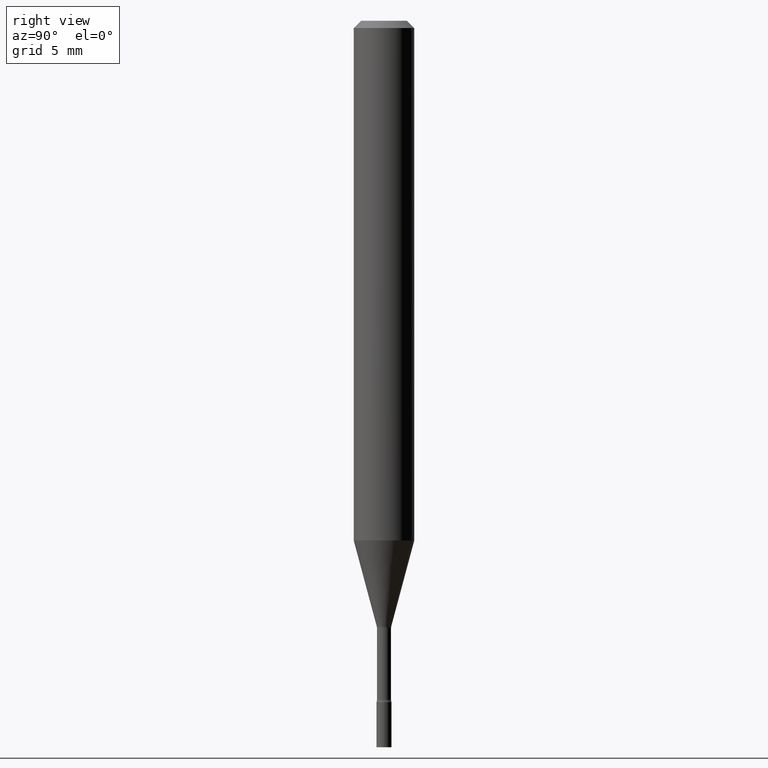
[diagram: clean part render]
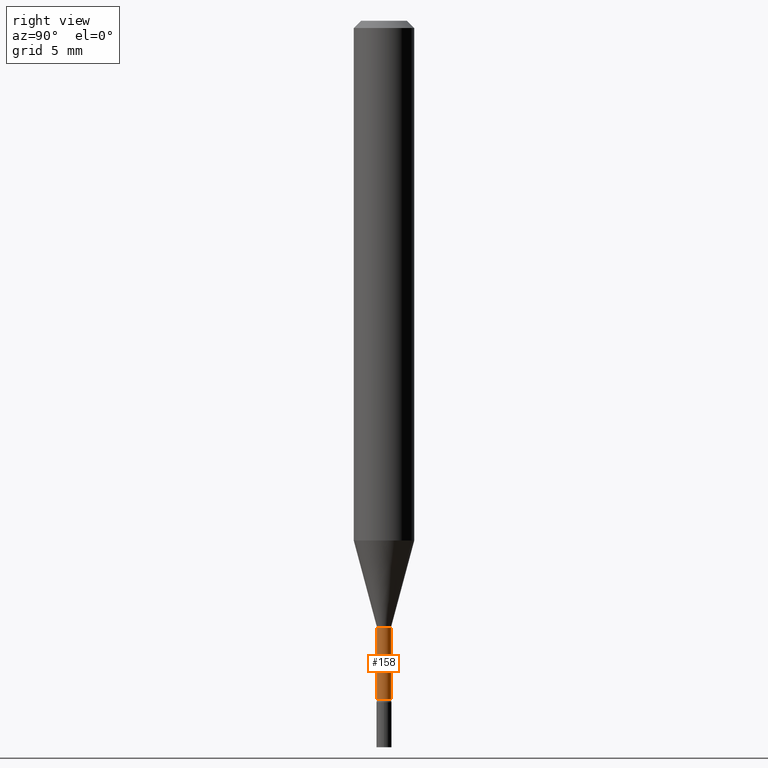
[diagram: same view with one face highlighted and labeled with its STEP entity id]
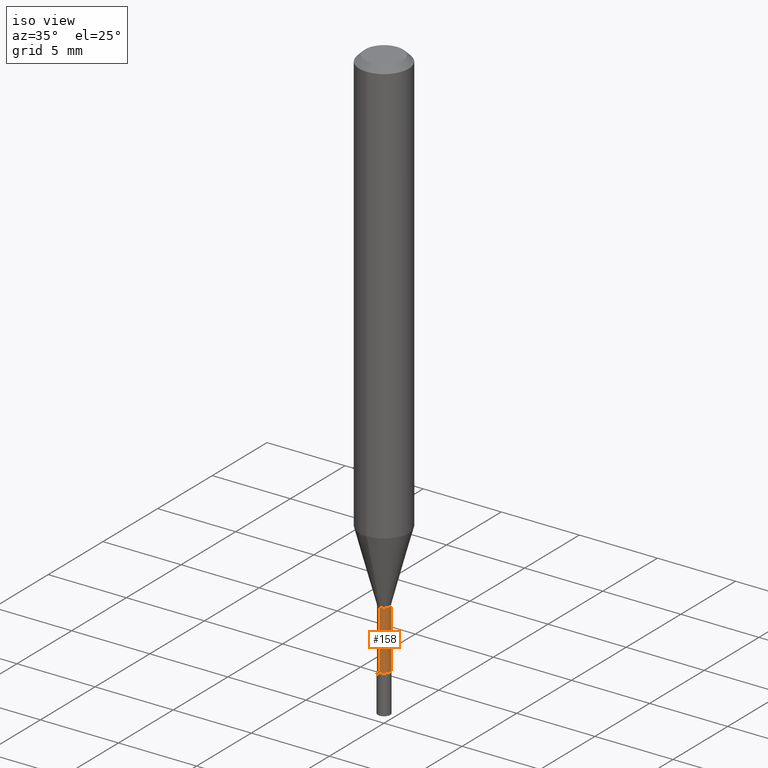
[diagram: same view with one face highlighted and labeled with its STEP entity id]
A machine part, right view. The second image highlights one B-rep face of the part: STEP entity #158.
A second angle (iso view) of the same face is appended — the face is thin or edge-on in the first view.
In plain terms, the highlighted cylindrical surface (edge-blend (fillet) strip) has radius 0.3696 mm, axis along (-0, 0, 1).
Its self-contained STEP definition (entity closure, byte-faithful):
#13 = LINE ( 'NONE', #342, #381 ) ;
#15 = FACE_OUTER_BOUND ( 'NONE', #385, .T. ) ;
#22 = DIRECTION ( 'NONE',  ( -2.445462235734121314E-29, 3.491490748102966351E-15, 1.000000000000000000 ) ) ;
#48 = CARTESIAN_POINT ( 'NONE',  ( -1.016021069603009763E-16, -0.01455000000000490450, -1.401746667724196538 ) ) ;
#78 = LINE ( 'NONE', #278, #98 ) ;
#80 = CARTESIAN_POINT ( 'NONE',  ( -1.016021069603045508E-16, -0.01455000000000438234, -1.253974787463811191 ) ) ;
#91 = VERTEX_POINT ( 'NONE', #48 ) ;
#98 = VECTOR ( 'NONE', #150, 39.37007874015748143 ) ;
#110 = VERTEX_POINT ( 'NONE', #80 ) ;
#113 = AXIS2_PLACEMENT_3D ( 'NONE', #456, #418, #345 ) ;
#140 = DIRECTION ( 'NONE',  ( -6.982962677686265922E-15, -1.000000000000000000, 3.491490748102966351E-15 ) ) ;
#145 = ORIENTED_EDGE ( 'NONE', *, *, #275, .F. ) ;
#150 = DIRECTION ( 'NONE',  ( -2.445462235734121314E-29, 3.491490748102966351E-15, 1.000000000000000000 ) ) ;
#158 = ADVANCED_FACE ( 'NONE', ( #15 ), #297, .T. ) ;
#172 = CIRCLE ( 'NONE', #254, 0.01455000000000001084 ) ;
#184 = DIRECTION ( 'NONE',  ( -2.445462235734121314E-29, 3.491490748102966351E-15, 1.000000000000000000 ) ) ;
#185 = EDGE_CURVE ( 'NONE', #110, #348, #464, .T. ) ;
#192 = DIRECTION ( 'NONE',  ( -2.445462235734121314E-29, 3.491490748102966351E-15, 1.000000000000000000 ) ) ;
#224 = ORIENTED_EDGE ( 'NONE', *, *, #281, .T. ) ;
#254 = AXIS2_PLACEMENT_3D ( 'NONE', #387, #192, #380 ) ;
#259 = CARTESIAN_POINT ( 'NONE',  ( 1.067590460479894681E-16, 0.01454999999999511892, -1.401746667724196538 ) ) ;
#263 = VERTEX_POINT ( 'NONE', #259 ) ;
#275 = EDGE_CURVE ( 'NONE', #91, #110, #13, .T. ) ;
#278 = CARTESIAN_POINT ( 'NONE',  ( 1.033839680530946048E-16, 0.01455000000000000737, -5.080119038489818639E-17 ) ) ;
#281 = EDGE_CURVE ( 'NONE', #91, #263, #172, .T. ) ;
#287 = ORIENTED_EDGE ( 'NONE', *, *, #337, .T. ) ;
#297 = CYLINDRICAL_SURFACE ( 'NONE', #365, 0.01455000000000000737 ) ;
#337 = EDGE_CURVE ( 'NONE', #263, #348, #78, .T. ) ;
#342 = CARTESIAN_POINT ( 'NONE',  ( -1.016021069603352178E-16, -0.01455000000000000737, 5.080119038489818639E-17 ) ) ;
#345 = DIRECTION ( 'NONE',  ( -6.982962677686266711E-15, -1.000000000000000000, 0.000000000000000000 ) ) ;
#348 = VERTEX_POINT ( 'NONE', #432 ) ;
#365 = AXIS2_PLACEMENT_3D ( 'NONE', #498, #184, #140 ) ;
#380 = DIRECTION ( 'NONE',  ( -6.982962677686266711E-15, -1.000000000000000000, 0.000000000000000000 ) ) ;
#381 = VECTOR ( 'NONE', #22, 39.37007874015748143 ) ;
#385 = EDGE_LOOP ( 'NONE', ( #224, #287, #513, #145 ) ) ;
#387 = CARTESIAN_POINT ( 'NONE',  ( 3.427918539985668469E-29, -4.894185521543194921E-15, -1.401746667724196538 ) ) ;
#418 = DIRECTION ( 'NONE',  ( -2.445462235734121314E-29, 3.491490748102966351E-15, 1.000000000000000000 ) ) ;
#432 = CARTESIAN_POINT ( 'NONE',  ( 1.033839680531288956E-16, 0.01454999999999562720, -1.253974787463811191 ) ) ;
#456 = CARTESIAN_POINT ( 'NONE',  ( 3.066547987305471395E-29, -4.378241368784279827E-15, -1.253974787463811191 ) ) ;
#464 = CIRCLE ( 'NONE', #113, 0.01455000000000000390 ) ;
#498 = CARTESIAN_POINT ( 'NONE',  ( 0.000000000000000000, 0.000000000000000000, 0.000000000000000000 ) ) ;
#513 = ORIENTED_EDGE ( 'NONE', *, *, #185, .F. ) ;